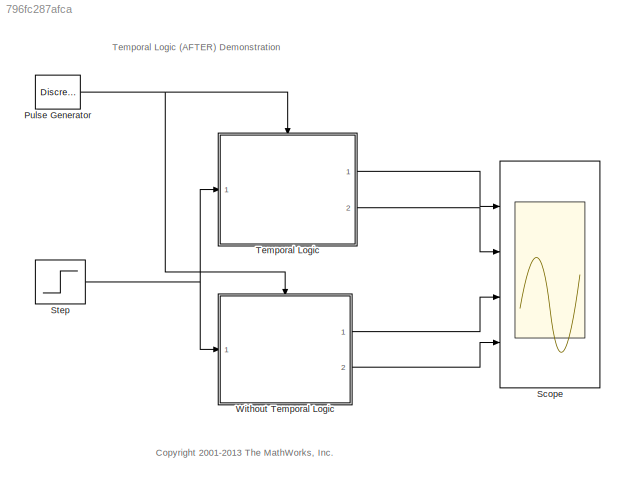
MODEL slx_796fc287afca
KIND model
CONFIG AbsTol = auto
CONFIG EnableMultiTasking = on
CONFIG FixedStep = auto
CONFIG MaxStep = auto
CONFIG MinStep = auto
CONFIG RelTol = 1e-3
CONFIG SampleTimeConstraint = Unconstrained
CONFIG Solver = ode45
CONFIG SolverName = ode45
CONFIG StartTime = 0.0
CONFIG StopTime = 100
BLOCK [DiscretePulseGenerator] Pulse Generator
  Period = 1
  Ports = [0, 1]
  PulseType = Time based
  PulseWidth = 50
BLOCK [Scope] Scope
  NumInputPorts = 4
  Ports = [4]
  ScopeSpecificationString = Simulink.scopes.TimeScopeBlockCfg('CurrentConfiguration', extmgr.ConfigurationSet(extmgr.Configuration('Core','General UI',true),extmgr.Configuration('Core','Source UI',true),extmgr.Configuration('Sources','WiredSimulink',true,'DataLoggingDecimation','1','DataLoggingLimitDataPoints',true,'DataLoggingSaveFormat','StructureWithTime'),extmgr.Configuration('Visuals','Time Domain',true,'SerializedDispl...<+3695ch>
BLOCK [Step] Step
  SampleTime = 0
  Time = 60
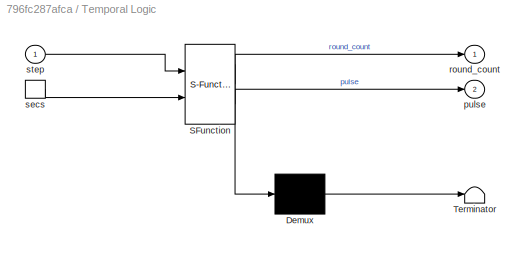
BLOCK [SubSystem] Temporal Logic
  ErrorFcn = Stateflow.Translate.translate
  PermitHierarchicalResolution = ExplicitOnly
  Ports = [1, 2, 0, 1]
  RequestExecContextInheritance = off
  SFBlockType = Chart
  TreatAsAtomicUnit = on
  Variant = off
BLOCK [Demux] Temporal Logic/ Demux 
  Outputs = 1
  Ports = [1, 1]
BLOCK [S-Function] Temporal Logic/ SFunction 
  EnableBusSupport = off
  FunctionName = sf_sfun
  PortCounts = [2 3]
  Ports = [2, 3]
  SFcnIsStateOwnerBlock = off
  SFunctionDeploymentMode = off
  Tag = Stateflow S-Function sf_tlafter 1
BLOCK [Terminator] Temporal Logic/ Terminator 
BLOCK [Outport] Temporal Logic/pulse
  IconDisplay = Port number
  Port = 2
BLOCK [Outport] Temporal Logic/round_count
  IconDisplay = Port number
BLOCK [TriggerPort] Temporal Logic/secs
  Ports = [0, 1]
  ShowOutputPort = on
  VariantControl = (inherit)
BLOCK [Inport] Temporal Logic/step
  IconDisplay = Port number
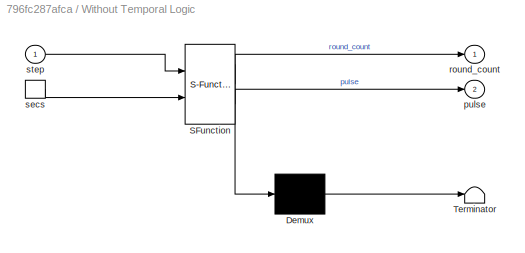
BLOCK [SubSystem] Without Temporal Logic
  ErrorFcn = Stateflow.Translate.translate
  PermitHierarchicalResolution = ExplicitOnly
  Ports = [1, 2, 0, 1]
  RequestExecContextInheritance = off
  SFBlockType = Chart
  TreatAsAtomicUnit = on
  Variant = off
BLOCK [Demux] Without Temporal Logic/ Demux 
  Outputs = 1
  Ports = [1, 1]
BLOCK [S-Function] Without Temporal Logic/ SFunction 
  EnableBusSupport = off
  FunctionName = sf_sfun
  PortCounts = [2 3]
  Ports = [2, 3]
  SFcnIsStateOwnerBlock = off
  SFunctionDeploymentMode = off
  Tag = Stateflow S-Function sf_tlafter 2
BLOCK [Terminator] Without Temporal Logic/ Terminator 
BLOCK [Outport] Without Temporal Logic/pulse
  IconDisplay = Port number
  Port = 2
BLOCK [Outport] Without Temporal Logic/round_count
  IconDisplay = Port number
BLOCK [TriggerPort] Without Temporal Logic/secs
  Ports = [0, 1]
  ShowOutputPort = on
  VariantControl = (inherit)
BLOCK [Inport] Without Temporal Logic/step
  IconDisplay = Port number
ANNOTATION (root): <copyright redacted>
ANNOTATION (root): Temporal Logic (AFTER) Demonstration
NET Pulse Generator:1 -> Temporal Logic:trigger, Without Temporal Logic:trigger
NET Step:1 -> Temporal Logic:1, Without Temporal Logic:1
LINE Temporal Logic:1 -> Scope:1
LINE Temporal Logic:2 -> Scope:2
LINE Without Temporal Logic:1 -> Scope:3
LINE Without Temporal Logic:2 -> Scope:4
note: NET lines group one-source signal fan-out (src -> all destinations, sorted); 1:1 wires keep LINE
CHART Temporal Logic states=2 transitions=3
  STATE_LABEL 'Off'
  STATE_LABEL 'On\nen:pulse=1;\nexit:pulse=0;'
CHART Without Temporal Logic states=3 transitions=4
  STATE_LABEL 'On'
  STATE_LABEL 'B\nentry: pulse=1;\nexit: pulse=0;'
  STATE_LABEL 'A\nentry: count_after=2;'
  STATE_LABEL '{count_after = count_after + 1;}'
  STATE_LABEL '[count_after>10 && step<1]'
  STATE_LABEL '{round_count = round_count + 1;}'
  STATE_LABEL 'B\nentry: pulse=1;\nexit: pulse=0;'
  STATE_LABEL 'A\nentry: count_after=2;'
  STATE_LABEL '{count_after = count_after + 1;}'
